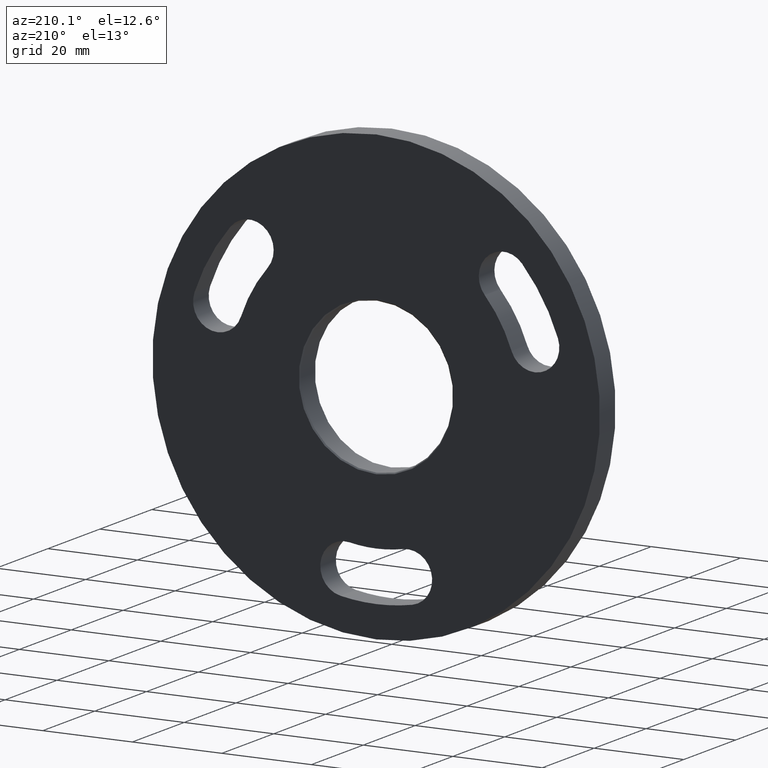
[diagram: clean part render]
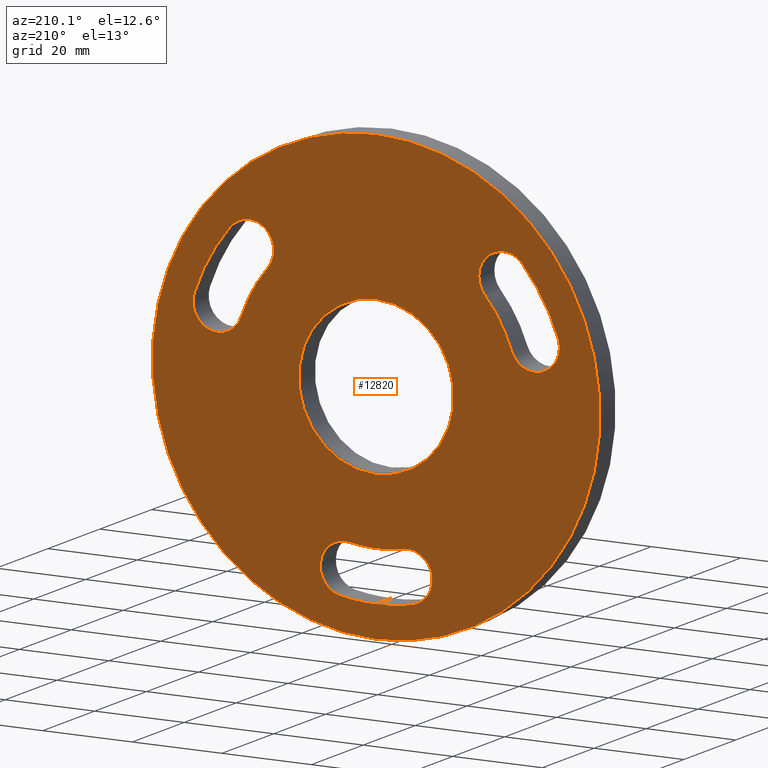
[diagram: same view with one face highlighted and labeled with its STEP entity id]
A machine part, auxiliary view. The second image highlights one B-rep face of the part: STEP entity #12820.
In plain terms, the highlighted planar face has unit normal (0, 1, 0).
Its self-contained STEP definition (entity closure, byte-faithful):
#24 = AXIS2_PLACEMENT_3D ( 'NONE', #1302, #3737, #9890 ) ;
#39 = EDGE_CURVE ( 'NONE', #104, #5428, #6629, .T. ) ;
#104 = VERTEX_POINT ( 'NONE', #2963 ) ;
#252 = ORIENTED_EDGE ( 'NONE', *, *, #7895, .F. ) ;
#290 = VERTEX_POINT ( 'NONE', #10743 ) ;
#307 = DIRECTION ( 'NONE',  ( 0.000000000000000000, 0.000000000000000000, 1.000000000000000000 ) ) ;
#423 = EDGE_CURVE ( 'NONE', #5946, #12633, #5212, .T. ) ;
#507 = CARTESIAN_POINT ( 'NONE',  ( 6.123233995736766085E-15, 6.000000000000000000, 50.00000000000000000 ) ) ;
#602 = AXIS2_PLACEMENT_3D ( 'NONE', #7332, #6300, #307 ) ;
#611 = CARTESIAN_POINT ( 'NONE',  ( 0.000000000000000000, 6.000000000000000000, 17.30000000000002203 ) ) ;
#687 = ORIENTED_EDGE ( 'NONE', *, *, #10367, .F. ) ;
#690 = ORIENTED_EDGE ( 'NONE', *, *, #7657, .F. ) ;
#828 = VERTEX_POINT ( 'NONE', #12093 ) ;
#836 = VERTEX_POINT ( 'NONE', #12317 ) ;
#840 = CARTESIAN_POINT ( 'NONE',  ( 24.23904666956506304, 6.000000000000000000, 20.89183133549203220 ) ) ;
#885 = VERTEX_POINT ( 'NONE', #8314 ) ;
#926 = EDGE_CURVE ( 'NONE', #10998, #965, #2212, .T. ) ;
#942 = CARTESIAN_POINT ( 'NONE',  ( 0.000000000000000000, 6.000000000000000000, 6.591949208711866959E-14 ) ) ;
#965 = VERTEX_POINT ( 'NONE', #10269 ) ;
#1017 = AXIS2_PLACEMENT_3D ( 'NONE', #11638, #2376, #6390 ) ;
#1119 = DIRECTION ( 'NONE',  ( 0.000000000000000000, 0.000000000000000000, 1.000000000000000000 ) ) ;
#1135 = EDGE_LOOP ( 'NONE', ( #5653, #2325 ) ) ;
#1205 = CARTESIAN_POINT ( 'NONE',  ( -5.973333333333338047, 6.000000000000000000, -31.43754584710595168 ) ) ;
#1247 = CIRCLE ( 'NONE', #11961, 42.99999999999998579 ) ;
#1261 = AXIS2_PLACEMENT_3D ( 'NONE', #7296, #12459, #10360 ) ;
#1302 = CARTESIAN_POINT ( 'NONE',  ( 0.000000000000000000, 6.000000000000000000, 0.000000000000000000 ) ) ;
#1630 = EDGE_LOOP ( 'NONE', ( #9296, #10247 ) ) ;
#1649 = CARTESIAN_POINT ( 'NONE',  ( 35.40513281589657879, 6.000000000000000000, 6.858259193297540079 ) ) ;
#1680 = AXIS2_PLACEMENT_3D ( 'NONE', #7341, #7163, #1119 ) ;
#1788 = EDGE_CURVE ( 'NONE', #828, #104, #1247, .T. ) ;
#1906 = DIRECTION ( 'NONE',  ( 0.000000000000000000, 0.000000000000000000, 1.000000000000000000 ) ) ;
#1986 = DIRECTION ( 'NONE',  ( 0.000000000000000000, 0.000000000000000000, 1.000000000000000000 ) ) ;
#2212 = CIRCLE ( 'NONE', #7005, 17.30000000000002203 ) ;
#2258 = EDGE_CURVE ( 'NONE', #9710, #10486, #5680, .T. ) ;
#2278 = EDGE_CURVE ( 'NONE', #5428, #5946, #5053, .T. ) ;
#2325 = ORIENTED_EDGE ( 'NONE', *, *, #4392, .T. ) ;
#2347 = EDGE_CURVE ( 'NONE', #10486, #7950, #10585, .T. ) ;
#2376 = DIRECTION ( 'NONE',  ( -0.000000000000000000, -1.000000000000000000, -0.000000000000000000 ) ) ;
#2495 = CARTESIAN_POINT ( 'NONE',  ( 0.000000000000000000, 6.000000000000000000, 6.591949208711866959E-14 ) ) ;
#2636 = ORIENTED_EDGE ( 'NONE', *, *, #6746, .F. ) ;
#2687 = DIRECTION ( 'NONE',  ( 0.000000000000000000, 0.000000000000000000, 1.000000000000000000 ) ) ;
#2803 = AXIS2_PLACEMENT_3D ( 'NONE', #2495, #12539, #8491 ) ;
#2963 = CARTESIAN_POINT ( 'NONE',  ( 40.59788562889475116, 6.000000000000000000, 14.17080387498119087 ) ) ;
#3162 = CARTESIAN_POINT ( 'NONE',  ( 0.000000000000000000, 6.000000000000000000, 6.591949208711866959E-14 ) ) ;
#3218 = CIRCLE ( 'NONE', #10881, 5.499999999999998224 ) ;
#3502 = ORIENTED_EDGE ( 'NONE', *, *, #423, .F. ) ;
#3721 = CARTESIAN_POINT ( 'NONE',  ( 0.000000000000000000, 6.000000000000000000, 6.591949208711866959E-14 ) ) ;
#3737 = DIRECTION ( 'NONE',  ( 0.000000000000000000, 1.000000000000000000, 0.000000000000000000 ) ) ;
#3748 = ORIENTED_EDGE ( 'NONE', *, *, #5892, .F. ) ;
#3859 = CIRCLE ( 'NONE', #602, 5.499999999999998224 ) ;
#3865 = CARTESIAN_POINT ( 'NONE',  ( 0.000000000000000000, 6.000000000000000000, 0.000000000000000000 ) ) ;
#3929 = DIRECTION ( 'NONE',  ( -0.000000000000000000, -1.000000000000000000, -0.000000000000000000 ) ) ;
#4180 = CIRCLE ( 'NONE', #7476, 43.00000000000004974 ) ;
#4265 = CARTESIAN_POINT ( 'NONE',  ( -28.40513281589655747, 6.000000000000000000, 24.48261484627972351 ) ) ;
#4285 = DIRECTION ( 'NONE',  ( 0.000000000000000000, 0.000000000000000000, 1.000000000000000000 ) ) ;
#4392 = EDGE_CURVE ( 'NONE', #965, #10998, #11927, .T. ) ;
#4511 = AXIS2_PLACEMENT_3D ( 'NONE', #4265, #8163, #12426 ) ;
#4516 = VERTEX_POINT ( 'NONE', #507 ) ;
#4685 = VERTEX_POINT ( 'NONE', #8331 ) ;
#4990 = DIRECTION ( 'NONE',  ( 0.000000000000000000, 1.000000000000000000, 0.000000000000000000 ) ) ;
#5053 = CIRCLE ( 'NONE', #1680, 5.500000000000007994 ) ;
#5158 = ORIENTED_EDGE ( 'NONE', *, *, #39, .F. ) ;
#5185 = EDGE_CURVE ( 'NONE', #885, #836, #12628, .T. ) ;
#5212 = CIRCLE ( 'NONE', #10162, 31.99999999999995737 ) ;
#5288 = CIRCLE ( 'NONE', #24, 50.00000000000000000 ) ;
#5428 = VERTEX_POINT ( 'NONE', #1649 ) ;
#5653 = ORIENTED_EDGE ( 'NONE', *, *, #926, .T. ) ;
#5680 = CIRCLE ( 'NONE', #1261, 5.499999999999998224 ) ;
#5709 = AXIS2_PLACEMENT_3D ( 'NONE', #7098, #4990, #11143 ) ;
#5740 = ORIENTED_EDGE ( 'NONE', *, *, #9703, .F. ) ;
#5892 = EDGE_CURVE ( 'NONE', #12633, #828, #10844, .T. ) ;
#5946 = VERTEX_POINT ( 'NONE', #8039 ) ;
#6119 = CIRCLE ( 'NONE', #7227, 32.00000000000007105 ) ;
#6191 = EDGE_CURVE ( 'NONE', #4516, #10106, #5288, .T. ) ;
#6192 = EDGE_LOOP ( 'NONE', ( #2636, #9325, #5740, #6388, #9656 ) ) ;
#6217 = EDGE_LOOP ( 'NONE', ( #8276, #3748, #3502, #11288, #5158 ) ) ;
#6300 = DIRECTION ( 'NONE',  ( 0.000000000000000000, 1.000000000000000000, 0.000000000000000000 ) ) ;
#6388 = ORIENTED_EDGE ( 'NONE', *, *, #6478, .F. ) ;
#6390 = DIRECTION ( 'NONE',  ( 0.000000000000000000, 0.000000000000000000, 1.000000000000000000 ) ) ;
#6478 = EDGE_CURVE ( 'NONE', #290, #6562, #6860, .T. ) ;
#6523 = VERTEX_POINT ( 'NONE', #12781 ) ;
#6553 = VERTEX_POINT ( 'NONE', #12597 ) ;
#6562 = VERTEX_POINT ( 'NONE', #10533 ) ;
#6617 = DIRECTION ( 'NONE',  ( 0.000000000000000000, 0.000000000000000000, 1.000000000000000000 ) ) ;
#6629 = CIRCLE ( 'NONE', #12298, 5.500000000000007994 ) ;
#6746 = EDGE_CURVE ( 'NONE', #836, #6523, #10668, .T. ) ;
#6860 = CIRCLE ( 'NONE', #8829, 31.99999999999995737 ) ;
#7005 = AXIS2_PLACEMENT_3D ( 'NONE', #10346, #9405, #4285 ) ;
#7007 = DIRECTION ( 'NONE',  ( 0.000000000000000000, 0.000000000000000000, 1.000000000000000000 ) ) ;
#7074 = DIRECTION ( 'NONE',  ( 0.000000000000000000, 1.000000000000000000, 0.000000000000000000 ) ) ;
#7098 = CARTESIAN_POINT ( 'NONE',  ( 0.000000000000000000, 6.000000000000000000, 0.000000000000000000 ) ) ;
#7163 = DIRECTION ( 'NONE',  ( 0.000000000000000000, 1.000000000000000000, 0.000000000000000000 ) ) ;
#7174 = CIRCLE ( 'NONE', #4511, 5.499999999999994671 ) ;
#7192 = DIRECTION ( 'NONE',  ( 0.000000000000000000, 1.000000000000000000, 0.000000000000000000 ) ) ;
#7227 = AXIS2_PLACEMENT_3D ( 'NONE', #11978, #9836, #1906 ) ;
#7274 = FACE_BOUND ( 'NONE', #10220, .T. ) ;
#7296 = CARTESIAN_POINT ( 'NONE',  ( -7.000000000000000888, 6.000000000000000000, -36.84087403957728668 ) ) ;
#7332 = CARTESIAN_POINT ( 'NONE',  ( 7.000000000000000888, 6.000000000000000000, -36.84087403957728668 ) ) ;
#7341 = CARTESIAN_POINT ( 'NONE',  ( 35.40513281589657879, 6.000000000000000000, 12.35825919329754718 ) ) ;
#7476 = AXIS2_PLACEMENT_3D ( 'NONE', #3721, #11785, #8731 ) ;
#7565 = CARTESIAN_POINT ( 'NONE',  ( -35.40513281589657169, 6.000000000000000000, 12.35825919329758271 ) ) ;
#7657 = EDGE_CURVE ( 'NONE', #4685, #9229, #3859, .T. ) ;
#7690 = ORIENTED_EDGE ( 'NONE', *, *, #8743, .F. ) ;
#7712 = DIRECTION ( 'NONE',  ( -0.000000000000000000, -1.000000000000000000, -0.000000000000000000 ) ) ;
#7852 = DIRECTION ( 'NONE',  ( 0.000000000000000000, 0.000000000000000000, 1.000000000000000000 ) ) ;
#7895 = EDGE_CURVE ( 'NONE', #9229, #6553, #10047, .T. ) ;
#7950 = VERTEX_POINT ( 'NONE', #10603 ) ;
#8039 = CARTESIAN_POINT ( 'NONE',  ( 30.21238000289839931, 6.000000000000000000, 10.54571451161389639 ) ) ;
#8163 = DIRECTION ( 'NONE',  ( 0.000000000000000000, 1.000000000000000000, 0.000000000000000000 ) ) ;
#8207 = CARTESIAN_POINT ( 'NONE',  ( 8.026666666666674388, 6.000000000000000000, -42.24420223204860747 ) ) ;
#8238 = FACE_BOUND ( 'NONE', #1135, .T. ) ;
#8276 = ORIENTED_EDGE ( 'NONE', *, *, #1788, .F. ) ;
#8314 = CARTESIAN_POINT ( 'NONE',  ( -35.40513281589657169, 6.000000000000000000, 6.858259193297582712 ) ) ;
#8331 = CARTESIAN_POINT ( 'NONE',  ( 5.973333333333330941, 6.000000000000000000, -31.43754584710596589 ) ) ;
#8423 = CARTESIAN_POINT ( 'NONE',  ( 0.000000000000000000, 6.000000000000000000, -50.00000000000000000 ) ) ;
#8491 = DIRECTION ( 'NONE',  ( 0.000000000000000000, 0.000000000000000000, 1.000000000000000000 ) ) ;
#8572 = AXIS2_PLACEMENT_3D ( 'NONE', #13071, #10969, #7007 ) ;
#8587 = EDGE_CURVE ( 'NONE', #6523, #290, #7174, .T. ) ;
#8675 = CARTESIAN_POINT ( 'NONE',  ( -8.026666666666663730, 6.000000000000000000, -42.24420223204860747 ) ) ;
#8731 = DIRECTION ( 'NONE',  ( 0.000000000000000000, 0.000000000000000000, 1.000000000000000000 ) ) ;
#8743 = EDGE_CURVE ( 'NONE', #6553, #9710, #4180, .T. ) ;
#8829 = AXIS2_PLACEMENT_3D ( 'NONE', #9646, #7712, #6617 ) ;
#9004 = DIRECTION ( 'NONE',  ( 0.000000000000000000, 1.000000000000000000, 0.000000000000000000 ) ) ;
#9229 = VERTEX_POINT ( 'NONE', #8207 ) ;
#9296 = ORIENTED_EDGE ( 'NONE', *, *, #9544, .T. ) ;
#9325 = ORIENTED_EDGE ( 'NONE', *, *, #5185, .F. ) ;
#9405 = DIRECTION ( 'NONE',  ( -0.000000000000000000, -1.000000000000000000, -0.000000000000000000 ) ) ;
#9484 = DIRECTION ( 'NONE',  ( -0.000000000000000000, -1.000000000000000000, -0.000000000000000000 ) ) ;
#9495 = FACE_OUTER_BOUND ( 'NONE', #1630, .T. ) ;
#9544 = EDGE_CURVE ( 'NONE', #10106, #4516, #10188, .T. ) ;
#9646 = CARTESIAN_POINT ( 'NONE',  ( 0.000000000000000000, 6.000000000000000000, 6.591949208711866959E-14 ) ) ;
#9656 = ORIENTED_EDGE ( 'NONE', *, *, #8587, .F. ) ;
#9703 = EDGE_CURVE ( 'NONE', #6562, #885, #3218, .T. ) ;
#9710 = VERTEX_POINT ( 'NONE', #8675 ) ;
#9778 = DIRECTION ( 'NONE',  ( 0.000000000000000000, 1.000000000000000000, 0.000000000000000000 ) ) ;
#9836 = DIRECTION ( 'NONE',  ( -0.000000000000000000, -1.000000000000000000, -0.000000000000000000 ) ) ;
#9890 = DIRECTION ( 'NONE',  ( 0.000000000000000000, 0.000000000000000000, 1.000000000000000000 ) ) ;
#9985 = CARTESIAN_POINT ( 'NONE',  ( 0.000000000000000000, 6.000000000000000000, 6.591949208711866959E-14 ) ) ;
#10047 = CIRCLE ( 'NONE', #2803, 43.00000000000004974 ) ;
#10106 = VERTEX_POINT ( 'NONE', #8423 ) ;
#10162 = AXIS2_PLACEMENT_3D ( 'NONE', #9985, #3929, #11012 ) ;
#10188 = CIRCLE ( 'NONE', #10204, 50.00000000000000000 ) ;
#10204 = AXIS2_PLACEMENT_3D ( 'NONE', #3865, #9004, #7852 ) ;
#10220 = EDGE_LOOP ( 'NONE', ( #252, #690, #687, #13132, #10552, #7690 ) ) ;
#10247 = ORIENTED_EDGE ( 'NONE', *, *, #6191, .T. ) ;
#10253 = DIRECTION ( 'NONE',  ( 0.000000000000000000, 1.000000000000000000, 0.000000000000000000 ) ) ;
#10260 = DIRECTION ( 'NONE',  ( 0.000000000000000000, 0.000000000000000000, 1.000000000000000000 ) ) ;
#10269 = CARTESIAN_POINT ( 'NONE',  ( 2.118638962524924295E-15, 6.000000000000000000, -17.30000000000002203 ) ) ;
#10296 = FACE_BOUND ( 'NONE', #6217, .T. ) ;
#10346 = CARTESIAN_POINT ( 'NONE',  ( 0.000000000000000000, 6.000000000000000000, 0.000000000000000000 ) ) ;
#10354 = AXIS2_PLACEMENT_3D ( 'NONE', #11190, #7192, #10260 ) ;
#10360 = DIRECTION ( 'NONE',  ( 0.000000000000000000, 0.000000000000000000, 1.000000000000000000 ) ) ;
#10367 = EDGE_CURVE ( 'NONE', #7950, #4685, #6119, .T. ) ;
#10378 = CARTESIAN_POINT ( 'NONE',  ( 0.000000000000000000, 6.000000000000000000, 0.000000000000000000 ) ) ;
#10486 = VERTEX_POINT ( 'NONE', #1205 ) ;
#10495 = DIRECTION ( 'NONE',  ( 0.000000000000000000, 0.000000000000000000, 1.000000000000000000 ) ) ;
#10533 = CARTESIAN_POINT ( 'NONE',  ( -30.21238000289838865, 6.000000000000000000, 10.54571451161392659 ) ) ;
#10552 = ORIENTED_EDGE ( 'NONE', *, *, #2258, .F. ) ;
#10585 = CIRCLE ( 'NONE', #1017, 32.00000000000007105 ) ;
#10603 = CARTESIAN_POINT ( 'NONE',  ( 0.000000000000000000, 6.000000000000000000, -32.00000000000000000 ) ) ;
#10654 = DIRECTION ( 'NONE',  ( 0.000000000000000000, 1.000000000000000000, 0.000000000000000000 ) ) ;
#10668 = CIRCLE ( 'NONE', #12332, 42.99999999999995737 ) ;
#10678 = AXIS2_PLACEMENT_3D ( 'NONE', #10378, #9484, #10495 ) ;
#10743 = CARTESIAN_POINT ( 'NONE',  ( -24.23904666956506659, 6.000000000000000000, 20.89183133549204285 ) ) ;
#10844 = CIRCLE ( 'NONE', #8572, 5.500000000000005329 ) ;
#10881 = AXIS2_PLACEMENT_3D ( 'NONE', #7565, #10654, #12721 ) ;
#10969 = DIRECTION ( 'NONE',  ( 0.000000000000000000, 1.000000000000000000, 0.000000000000000000 ) ) ;
#10998 = VERTEX_POINT ( 'NONE', #611 ) ;
#11012 = DIRECTION ( 'NONE',  ( 0.000000000000000000, 0.000000000000000000, 1.000000000000000000 ) ) ;
#11143 = DIRECTION ( 'NONE',  ( 0.000000000000000000, -0.000000000000000000, 1.000000000000000000 ) ) ;
#11190 = CARTESIAN_POINT ( 'NONE',  ( -35.40513281589657169, 6.000000000000000000, 12.35825919329758271 ) ) ;
#11270 = DIRECTION ( 'NONE',  ( 0.000000000000000000, 0.000000000000000000, 1.000000000000000000 ) ) ;
#11288 = ORIENTED_EDGE ( 'NONE', *, *, #2278, .F. ) ;
#11638 = CARTESIAN_POINT ( 'NONE',  ( 0.000000000000000000, 6.000000000000000000, 6.591949208711866959E-14 ) ) ;
#11785 = DIRECTION ( 'NONE',  ( 0.000000000000000000, 1.000000000000000000, 0.000000000000000000 ) ) ;
#11927 = CIRCLE ( 'NONE', #10678, 17.30000000000002203 ) ;
#11961 = AXIS2_PLACEMENT_3D ( 'NONE', #3162, #10253, #11270 ) ;
#11978 = CARTESIAN_POINT ( 'NONE',  ( 0.000000000000000000, 6.000000000000000000, 6.591949208711866959E-14 ) ) ;
#12093 = CARTESIAN_POINT ( 'NONE',  ( 32.57121896222807322, 6.000000000000000000, 28.07339835706743258 ) ) ;
#12298 = AXIS2_PLACEMENT_3D ( 'NONE', #12911, #9778, #2687 ) ;
#12317 = CARTESIAN_POINT ( 'NONE',  ( -40.59788562889472274, 6.000000000000000000, 14.17080387498119265 ) ) ;
#12332 = AXIS2_PLACEMENT_3D ( 'NONE', #942, #7074, #1986 ) ;
#12426 = DIRECTION ( 'NONE',  ( 0.000000000000000000, 0.000000000000000000, 1.000000000000000000 ) ) ;
#12459 = DIRECTION ( 'NONE',  ( 0.000000000000000000, 1.000000000000000000, 0.000000000000000000 ) ) ;
#12534 = FACE_BOUND ( 'NONE', #6192, .T. ) ;
#12539 = DIRECTION ( 'NONE',  ( 0.000000000000000000, 1.000000000000000000, 0.000000000000000000 ) ) ;
#12597 = CARTESIAN_POINT ( 'NONE',  ( 0.000000000000000000, 6.000000000000000000, -42.99999999999998579 ) ) ;
#12628 = CIRCLE ( 'NONE', #10354, 5.499999999999998224 ) ;
#12633 = VERTEX_POINT ( 'NONE', #840 ) ;
#12721 = DIRECTION ( 'NONE',  ( 0.000000000000000000, 0.000000000000000000, 1.000000000000000000 ) ) ;
#12781 = CARTESIAN_POINT ( 'NONE',  ( -32.57121896222807322, 6.000000000000000000, 28.07339835706740416 ) ) ;
#12820 = ADVANCED_FACE ( 'NONE', ( #8238, #9495, #7274, #10296, #12534 ), #13075, .T. ) ;
#12911 = CARTESIAN_POINT ( 'NONE',  ( 35.40513281589657879, 6.000000000000000000, 12.35825919329754718 ) ) ;
#13071 = CARTESIAN_POINT ( 'NONE',  ( 28.40513281589655747, 6.000000000000000000, 24.48261484627972351 ) ) ;
#13075 = PLANE ( 'NONE',  #5709 ) ;
#13132 = ORIENTED_EDGE ( 'NONE', *, *, #2347, .F. ) ;